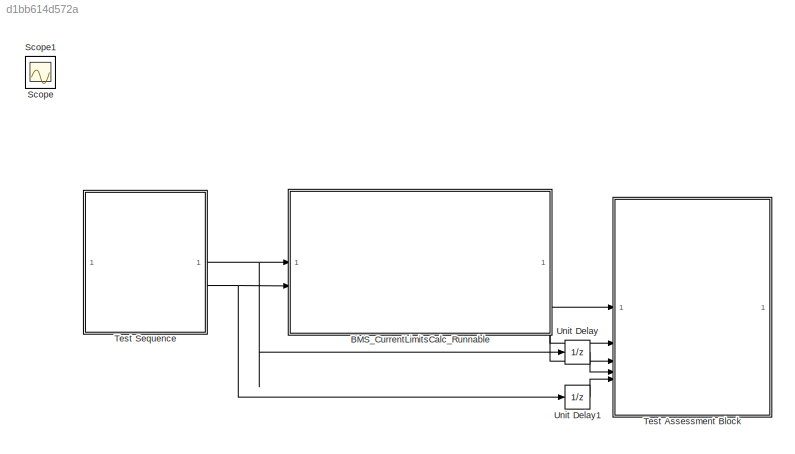
MODEL slx_d1bb614d572a
KIND model
CONFIG AbsTol = auto
CONFIG EnableMultiTasking = on
CONFIG FixedStep = auto
CONFIG MaxStep = auto
CONFIG MinStep = auto
CONFIG RelTol = 1e-3
CONFIG SampleTimeConstraint = Unconstrained
CONFIG SolverName = FixedStepDiscrete
CONFIG StartTime = 0.0
CONFIG StopTime = 10.0
WORKSPACE source: external: MAT-File  (data not in archive)
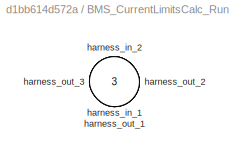
BLOCK [SubSystem] BMS_CurrentLimitsCalc_Runnable
  Priority = 0
  Tag = __SL_testing_harness_stub_
BLOCK [Inport] BMS_CurrentLimitsCalc_Runnable/harness_in_1
BLOCK [Inport] BMS_CurrentLimitsCalc_Runnable/harness_in_2
  Port = 2
BLOCK [Outport] BMS_CurrentLimitsCalc_Runnable/harness_out_1
BLOCK [Outport] BMS_CurrentLimitsCalc_Runnable/harness_out_2
  Port = 2
BLOCK [Outport] BMS_CurrentLimitsCalc_Runnable/harness_out_3
  Port = 3
BLOCK [Scope] Scope
  Floating = off
  IOType = viewer
  NumInputPorts = 1
  ScopeSpecificationString = Simulink.scopes.TimeScopeBlockCfg('CurrentConfiguration', extmgr.ConfigurationSet(extmgr.Configuration('Core','General UI',true),extmgr.Configuration('Core','Source UI',true),extmgr.Configuration('Sources','WiredSimulink',true),extmgr.Configuration('Visuals','Time Domain',true,'SerializedDisplays',{struct('MinYLimReal','-1.98188','MaxYLimReal','17.83688','YLabelReal','','MinYLimMag','0.00000','Max...<+2934ch>
BLOCK [Scope] Scope1
  Floating = off
  IOType = viewer
  NumInputPorts = 1
  ScopeSpecificationString = Simulink.scopes.TimeScopeBlockCfg('CurrentConfiguration', extmgr.ConfigurationSet(extmgr.Configuration('Core','General UI',true),extmgr.Configuration('Core','Source UI',true),extmgr.Configuration('Sources','WiredSimulink',true,'DataLoggingVariableName','ScopeData1'),extmgr.Configuration('Visuals','Time Domain',true,'SerializedDisplays',{struct('MinYLimReal','-1.00000','MaxYLimReal','1.00000','YLab...<+2217ch>
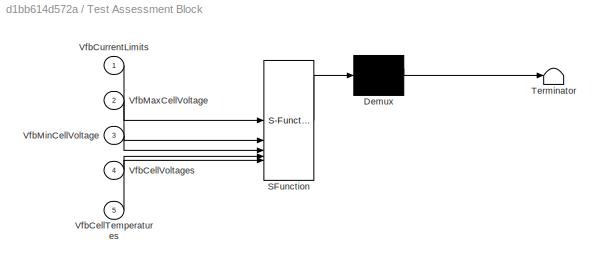
BLOCK [SubSystem] Test Assessment Block
  ErrorFcn = Stateflow.Translate.translate
  PermitHierarchicalResolution = ExplicitOnly
  SFBlockType = Test Sequence
  ShowPortLabels = none
  SystemSampleTime = Schedule.BMS_CurrentLimitsCalc_Task
  Tag = __SLT_ASMT__
  TreatAsAtomicUnit = on
BLOCK [Demux] Test Assessment Block/ Demux 
  Outputs = 1
BLOCK [S-Function] Test Assessment Block/ SFunction 
  EnableBusSupport = on
  FunctionName = sf_sfun
  Parameters = 1,BATT.Voltage.Max_Chrg,BATT.Voltage.Cut_off
  PortCounts = [5 1]
  SFcnIsStateOwnerBlock = off
  SFunctionDeploymentMode = off
  Tag = Stateflow S-Function 1
BLOCK [Terminator] Test Assessment Block/ Terminator 
BLOCK [Inport] Test Assessment Block/VfbCellTemperatures
  Port = 5
BLOCK [Inport] Test Assessment Block/VfbCellVoltages
  Port = 4
BLOCK [Inport] Test Assessment Block/VfbCurrentLimits
BLOCK [Inport] Test Assessment Block/VfbMaxCellVoltage
  Port = 2
BLOCK [Inport] Test Assessment Block/VfbMinCellVoltage
  Port = 3
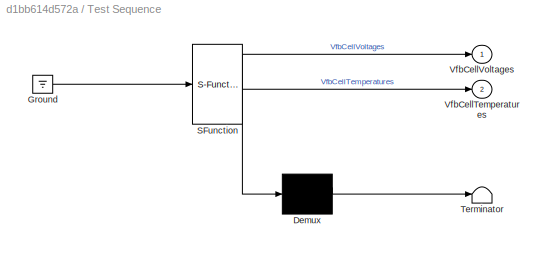
BLOCK [SubSystem] Test Sequence
  ErrorFcn = Stateflow.Translate.translate
  PermitHierarchicalResolution = ExplicitOnly
  SFBlockType = Test Sequence
  ShowPortLabels = none
  TreatAsAtomicUnit = on
BLOCK [Demux] Test Sequence/ Demux 
  Outputs = 1
BLOCK [Ground] Test Sequence/ Ground 
BLOCK [S-Function] Test Sequence/ SFunction 
  EnableBusSupport = on
  FunctionName = sf_sfun
  Parameters = 3
  PortCounts = [1 3]
  SFcnIsStateOwnerBlock = off
  SFunctionDeploymentMode = off
  Tag = Stateflow S-Function 4
BLOCK [Terminator] Test Sequence/ Terminator 
BLOCK [Outport] Test Sequence/VfbCellTemperatures
  Port = 2
BLOCK [Outport] Test Sequence/VfbCellVoltages
BLOCK [UnitDelay] Unit Delay
  HasFrameUpgradeWarning = on
  SampleTime = -1
BLOCK [UnitDelay] Unit Delay1
  HasFrameUpgradeWarning = on
  SampleTime = -1
LINE BMS_CurrentLimitsCalc_Runnable:1 -> Test Assessment Block:1
LINE BMS_CurrentLimitsCalc_Runnable:2 -> Test Assessment Block:2
LINE BMS_CurrentLimitsCalc_Runnable:3 -> Test Assessment Block:3
NET Test Sequence:1 -> BMS_CurrentLimitsCalc_Runnable:1, Unit Delay:1
NET Test Sequence:2 -> BMS_CurrentLimitsCalc_Runnable:2, Unit Delay1:1
LINE Unit Delay1:1 -> Test Assessment Block:5
LINE Unit Delay:1 -> Test Assessment Block:4
note: NET lines group one-source signal fan-out (src -> all destinations, sorted); 1:1 wires keep LINE
CHART Test Assessment Block states=5 transitions=12
  STATE_LABEL 'Scenario_1'
  STATE_LABEL 'Run\n'
  STATE_LABEL 'Run_1\n\nverify(abs(VfbMaxCellVoltage - max(VfbCellVoltages)) <= tol);\nverify(abs(VfbMinCellVoltage  -  min(VfbCellVoltages)) <= tol);\n'
  STATE_LABEL 'Run_1_1 \n\nif  (VfbMaxCellVoltage <= VMAXD) && (VfbMinCellVoltage >= VMIN) && (min(VfbCellTemperatures) <= TMIN)\n    verify((VfbCurrentLimits(1) >= (-1.03 * ImaxDchrg)) && (VfbCurrentLimits(1) <= 0));\nend\n\nif  (VfbMaxCellVoltage <= VMAXC) && (VfbMinCellVoltage >= VMIN) && (min(VfbCellTemperatures) <= TMIN)\n    verify((VfbCurrentLimits(2) <= ImaxChrg ) && (VfbCurrentLimits(2) >= 0));\nend\n'  <repeated x4 — deduplicated; at blocks: Test Assessment Block>
  STATE_LABEL 'Run_2'
  STATE_LABEL '[t > 0\n]'
  STATE_LABEL '[~in(Scenario_1.Run.Run_1)]'
  STATE_LABEL '[~in(Scenario_1.Run.Run_2)]'
  STATE_LABEL 'Run\n'
  STATE_LABEL 'Run_1\n\nverify(abs(VfbMaxCellVoltage - max(VfbCellVoltages)) <= tol);\nverify(abs(VfbMinCellVoltage  -  min(VfbCellVoltages)) <= tol);\n'
  STATE_LABEL 'Run_2'
  STATE_LABEL '[t > 0\n]'
  STATE_LABEL '[~in(Scenario_1.Run.Run_1)]'
  STATE_LABEL '[~in(Scenario_1.Run.Run_2)]'
  STATE_LABEL 'Run_1\n\nverify(abs(VfbMaxCellVoltage - max(VfbCellVoltages)) <= tol);\nverify(abs(VfbMinCellVoltage  -  min(VfbCellVoltages)) <= tol);\n'
  STATE_LABEL 'Run_2'
CHART Test Sequence states=18 transitions=19
  STATE_LABEL 'StaticBoundary'
  STATE_LABEL "S1\n\nVs = ones(Ns, Num, 'single');\nTs  = ones(Ns, Num, 'single');\n\nVfbCellVoltages = Vs * Vmin;\nVfbCellTemperatures = Ts * Tmin;\n"
  STATE_LABEL 'S2\n\nVfbCellVoltages = Vs * Vmax;\nVfbCellTemperatures = Ts * Tmin;\n'
  STATE_LABEL 'S3\n\nVfbCellVoltages = Vs * Vmin;\nVfbCellTemperatures = Ts * Tmax;'
  STATE_LABEL 'S4\n\nVfbCellVoltages = Vs * Vmax;\nVfbCellTemperatures = Ts * Tmax;'
  STATE_LABEL "end\ncoder.extrinsic('set_param');\nset_param(bdroot, 'SimulationCommand', 'stop');"
  STATE_LABEL '[\nafter(1, sec)\n]'
  STATE_LABEL '[\nafter(1, sec)\n]'
  STATE_LABEL '[\nafter(1, sec)\n]'
  STATE_LABEL '[\nafter(1+1, sec)\n]'
  STATE_LABEL "S1\n\nVs = ones(Ns, Num, 'single');\nTs  = ones(Ns, Num, 'single');\n\nVfbCellVoltages = Vs * Vmin;\nVfbCellTemperatures = Ts * Tmin;\n"
  STATE_LABEL 'S2\n\nVfbCellVoltages = Vs * Vmax;\nVfbCellTemperatures = Ts * Tmin;\n'
  STATE_LABEL 'S3\n\nVfbCellVoltages = Vs * Vmin;\nVfbCellTemperatures = Ts * Tmax;'
  STATE_LABEL 'S4\n\nVfbCellVoltages = Vs * Vmax;\nVfbCellTemperatures = Ts * Tmax;'
  STATE_LABEL "end\ncoder.extrinsic('set_param');\nset_param(bdroot, 'SimulationCommand', 'stop');"
  STATE_LABEL 'RandamTests'
  STATE_LABEL "S1\n\nVs = rand(Ns, Num, 'single');\nTs  = rand(Ns, Num, 'single');\n\nVfbCellVoltages = Vs * Vmax;\nVfbCellTemperatures = (Ts * (Tmax - Tmin)) + Tmin;"
  STATE_LABEL "S2\n\nVs = rand(Ns, Num, 'single');\nTs  = rand(Ns, Num, 'single');\n\nVfbCellVoltages = Vs * Vmax;\nVfbCellTemperatures = (Ts * (Tmax - Tmin)) + Tmin;"
  STATE_LABEL "S3\n\nVs = rand(Ns, Num, 'single');\nTs  = rand(Ns, Num, 'single');\n\nVfbCellVoltages = Vs * Vmax;\nVfbCellTemperatures = (Ts * (Tmax - Tmin)) + Tmin;"
  STATE_LABEL "S4\n\nVs = rand(Ns, Num, 'single');\nTs  = rand(Ns, Num, 'single');\n\nVfbCellVoltages = Vs * Vmax;\nVfbCellTemperatures = (Ts * (Tmax - Tmin)) + Tmin;"
  STATE_LABEL "end\ncoder.extrinsic('set_param');\nset_param(bdroot, 'SimulationCommand', 'stop');"
  STATE_LABEL '[\nafter(1, sec)\n]'
  STATE_LABEL '[\nafter(1, sec)\n]'
  STATE_LABEL '[\nafter(1, sec)\n]'
  STATE_LABEL '[\nafter(1+1, sec)\n]'
  STATE_LABEL "S1\n\nVs = rand(Ns, Num, 'single');\nTs  = rand(Ns, Num, 'single');\n\nVfbCellVoltages = Vs * Vmax;\nVfbCellTemperatures = (Ts * (Tmax - Tmin)) + Tmin;"
  STATE_LABEL "S2\n\nVs = rand(Ns, Num, 'single');\nTs  = rand(Ns, Num, 'single');\n\nVfbCellVoltages = Vs * Vmax;\nVfbCellTemperatures = (Ts * (Tmax - Tmin)) + Tmin;"
  STATE_LABEL "S3\n\nVs = rand(Ns, Num, 'single');\nTs  = rand(Ns, Num, 'single');\n\nVfbCellVoltages = Vs * Vmax;\nVfbCellTemperatures = (Ts * (Tmax - Tmin)) + Tmin;"
  STATE_LABEL "S4\n\nVs = rand(Ns, Num, 'single');\nTs  = rand(Ns, Num, 'single');\n\nVfbCellVoltages = Vs * Vmax;\nVfbCellTemperatures = (Ts * (Tmax - Tmin)) + Tmin;"
  STATE_LABEL "end\ncoder.extrinsic('set_param');\nset_param(bdroot, 'SimulationCommand', 'stop');"
  STATE_LABEL 'RampTests'
  STATE_LABEL "Run\n\nVs = ones(Ns, Num, 'single');\nTs  = ones(Ns, Num, 'single');\ni = 1;\n"
  STATE_LABEL 'S1\n\nVfbCellVoltages = Vs * Vmin + (Vmax - Vmin) * ramp(et/5);\nVfbCellTemperatures = Ts * T_step(i);\ni = i + 1;\n'
  STATE_LABEL 'S2'
  STATE_LABEL 'S3'
  STATE_LABEL "end\ncoder.extrinsic('set_param');\nset_param(bdroot, 'SimulationCommand', 'stop');"
  STATE_LABEL '[\nafter(5, sec)\n]'
  STATE_LABEL '[\ni == length(T_step)\n]'
  STATE_LABEL '[\nafter(5, sec)\n]'
  STATE_LABEL "Run\n\nVs = ones(Ns, Num, 'single');\nTs  = ones(Ns, Num, 'single');\ni = 1;\n"
